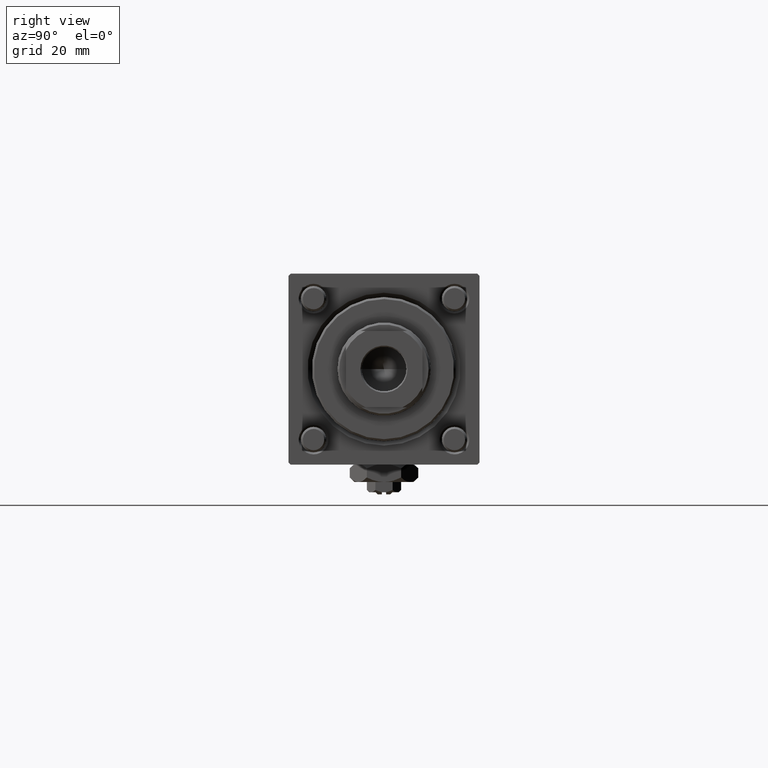
[diagram: clean part render]
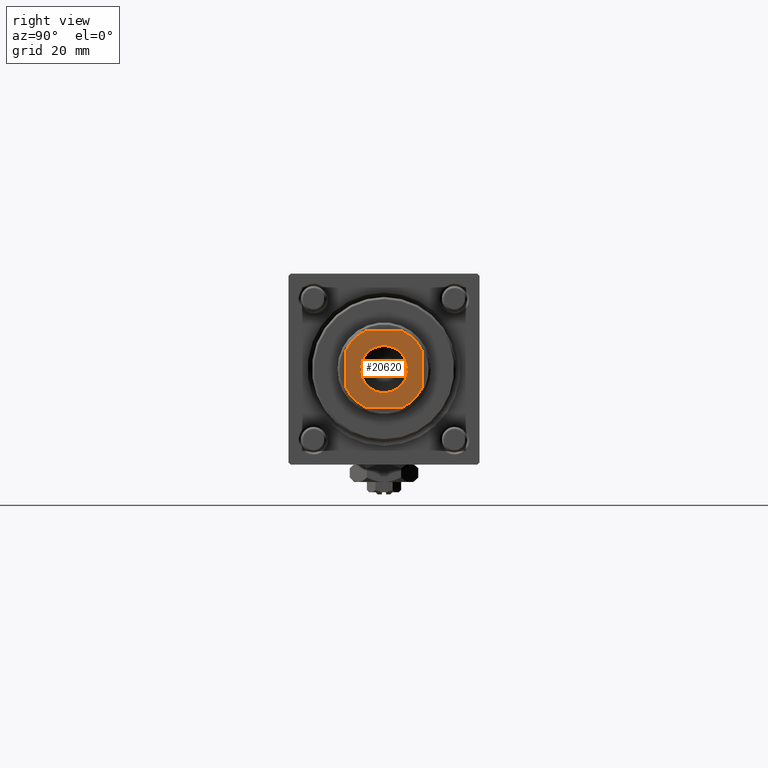
[diagram: same view with one face highlighted and labeled with its STEP entity id]
A machine part, right view. The second image highlights one B-rep face of the part: STEP entity #20620.
In plain terms, the highlighted planar face has unit normal (1, 0, 0).
Its self-contained STEP definition (entity closure, byte-faithful):
#373 = ORIENTED_EDGE ( 'NONE', *, *, #23490, .T. ) ;
#693 = CARTESIAN_POINT ( 'NONE',  ( 8.999999999999996447, 8.999999999999998224, 123.0000000000000000 ) ) ;
#1436 = CARTESIAN_POINT ( 'NONE',  ( 4.358898943540597593, 8.999999999999998224, 123.0000000000000000 ) ) ;
#1494 = ORIENTED_EDGE ( 'NONE', *, *, #36957, .T. ) ;
#1836 = LINE ( 'NONE', #20181, #3960 ) ;
#2848 = ORIENTED_EDGE ( 'NONE', *, *, #23526, .T. ) ;
#3960 = VECTOR ( 'NONE', #56297, 1000.000000000000000 ) ;
#4156 = CIRCLE ( 'NONE', #11730, 5.550000000000013145 ) ;
#6124 = EDGE_CURVE ( 'NONE', #20666, #36016, #1836, .T. ) ;
#6717 = CARTESIAN_POINT ( 'NONE',  ( 8.999999999999998224, 4.358898943540600257, 123.0000000000000000 ) ) ;
#6874 = CARTESIAN_POINT ( 'NONE',  ( 4.358898943540667759, -9.000000000000001776, 123.0000000000000000 ) ) ;
#7294 = DIRECTION ( 'NONE',  ( -0.000000000000000000, 0.000000000000000000, 1.000000000000000000 ) ) ;
#8999 = DIRECTION ( 'NONE',  ( -0.000000000000000000, 0.000000000000000000, 1.000000000000000000 ) ) ;
#10933 = EDGE_CURVE ( 'NONE', #28220, #20797, #42606, .T. ) ;
#11419 = EDGE_LOOP ( 'NONE', ( #53287, #54380, #373, #1494, #26967, #51814, #36761, #54219 ) ) ;
#11730 = AXIS2_PLACEMENT_3D ( 'NONE', #53617, #13060, #42785 ) ;
#12093 = CIRCLE ( 'NONE', #18748, 9.999999999999998224 ) ;
#12651 = EDGE_CURVE ( 'NONE', #25929, #25491, #57084, .T. ) ;
#12850 = DIRECTION ( 'NONE',  ( -1.927470528863119049E-16, 1.000000000000000000, -0.000000000000000000 ) ) ;
#13060 = DIRECTION ( 'NONE',  ( 0.000000000000000000, -0.000000000000000000, -1.000000000000000000 ) ) ;
#13853 = FACE_OUTER_BOUND ( 'NONE', #11419, .T. ) ;
#14152 = CARTESIAN_POINT ( 'NONE',  ( 0.000000000000000000, 0.000000000000000000, 123.0000000000000000 ) ) ;
#14355 = DIRECTION ( 'NONE',  ( -0.000000000000000000, 0.000000000000000000, 1.000000000000000000 ) ) ;
#14469 = VECTOR ( 'NONE', #12850, 1000.000000000000000 ) ;
#14783 = CARTESIAN_POINT ( 'NONE',  ( -9.000000000000003553, 8.999999999999998224, 123.0000000000000000 ) ) ;
#18748 = AXIS2_PLACEMENT_3D ( 'NONE', #27375, #8999, #49862 ) ;
#20181 = CARTESIAN_POINT ( 'NONE',  ( -9.000000000000001776, -9.000000000000001776, 123.0000000000000000 ) ) ;
#20343 = CARTESIAN_POINT ( 'NONE',  ( -5.550000000000013145, 6.796789735267826558E-16, 123.0000000000000000 ) ) ;
#20620 = ADVANCED_FACE ( 'NONE', ( #23338, #13853 ), #58557, .T. ) ;
#20666 = VERTEX_POINT ( 'NONE', #55888 ) ;
#20797 = VERTEX_POINT ( 'NONE', #54646 ) ;
#21087 = EDGE_CURVE ( 'NONE', #48092, #45652, #41249, .T. ) ;
#22684 = DIRECTION ( 'NONE',  ( -0.000000000000000000, 0.000000000000000000, 1.000000000000000000 ) ) ;
#23299 = EDGE_CURVE ( 'NONE', #45652, #53907, #33511, .T. ) ;
#23338 = FACE_BOUND ( 'NONE', #57791, .T. ) ;
#23490 = EDGE_CURVE ( 'NONE', #53907, #41492, #26112, .T. ) ;
#23526 = EDGE_CURVE ( 'NONE', #25491, #25929, #4156, .T. ) ;
#24938 = VECTOR ( 'NONE', #55341, 1000.000000000000000 ) ;
#25369 = DIRECTION ( 'NONE',  ( 1.000000000000000000, 0.000000000000000000, 0.000000000000000000 ) ) ;
#25491 = VERTEX_POINT ( 'NONE', #25829 ) ;
#25829 = CARTESIAN_POINT ( 'NONE',  ( 5.550000000000013145, 0.000000000000000000, 123.0000000000000000 ) ) ;
#25929 = VERTEX_POINT ( 'NONE', #20343 ) ;
#26112 = LINE ( 'NONE', #44159, #29700 ) ;
#26686 = CARTESIAN_POINT ( 'NONE',  ( -9.000000000000003553, 4.358898943540662430, 123.0000000000000000 ) ) ;
#26967 = ORIENTED_EDGE ( 'NONE', *, *, #10933, .T. ) ;
#27375 = CARTESIAN_POINT ( 'NONE',  ( 0.000000000000000000, 0.000000000000000000, 123.0000000000000000 ) ) ;
#28090 = CIRCLE ( 'NONE', #42287, 9.999999999999996447 ) ;
#28220 = VERTEX_POINT ( 'NONE', #26686 ) ;
#28282 = DIRECTION ( 'NONE',  ( 1.000000000000000000, 0.000000000000000000, 0.000000000000000000 ) ) ;
#29700 = VECTOR ( 'NONE', #39741, 1000.000000000000000 ) ;
#29925 = ORIENTED_EDGE ( 'NONE', *, *, #12651, .T. ) ;
#30624 = CARTESIAN_POINT ( 'NONE',  ( 8.999999999999998224, -4.358898943540672200, 123.0000000000000000 ) ) ;
#31875 = DIRECTION ( 'NONE',  ( 1.000000000000000000, 0.000000000000000000, 0.000000000000000000 ) ) ;
#32071 = CARTESIAN_POINT ( 'NONE',  ( -4.358898943540671311, 8.999999999999998224, 123.0000000000000000 ) ) ;
#32098 = AXIS2_PLACEMENT_3D ( 'NONE', #41601, #14355, #33321 ) ;
#33321 = DIRECTION ( 'NONE',  ( 1.000000000000000000, 0.000000000000000000, 0.000000000000000000 ) ) ;
#33436 = AXIS2_PLACEMENT_3D ( 'NONE', #14152, #54120, #50573 ) ;
#33511 = CIRCLE ( 'NONE', #47658, 9.999999999999966249 ) ;
#36016 = VERTEX_POINT ( 'NONE', #6874 ) ;
#36581 = CARTESIAN_POINT ( 'NONE',  ( 0.000000000000000000, 0.000000000000000000, 123.0000000000000000 ) ) ;
#36761 = ORIENTED_EDGE ( 'NONE', *, *, #6124, .T. ) ;
#36957 = EDGE_CURVE ( 'NONE', #41492, #28220, #28090, .T. ) ;
#39275 = EDGE_CURVE ( 'NONE', #20797, #20666, #12093, .T. ) ;
#39741 = DIRECTION ( 'NONE',  ( -1.000000000000000000, -0.000000000000000000, -0.000000000000000000 ) ) ;
#41249 = LINE ( 'NONE', #693, #14469 ) ;
#41492 = VERTEX_POINT ( 'NONE', #32071 ) ;
#41601 = CARTESIAN_POINT ( 'NONE',  ( 0.000000000000000000, 0.000000000000000000, 123.0000000000000000 ) ) ;
#42287 = AXIS2_PLACEMENT_3D ( 'NONE', #47865, #7294, #25369 ) ;
#42606 = LINE ( 'NONE', #14783, #24938 ) ;
#42785 = DIRECTION ( 'NONE',  ( 1.000000000000000000, 0.000000000000000000, 0.000000000000000000 ) ) ;
#44159 = CARTESIAN_POINT ( 'NONE',  ( -9.000000000000003553, 8.999999999999998224, 123.0000000000000000 ) ) ;
#45178 = CARTESIAN_POINT ( 'NONE',  ( 0.000000000000000000, 0.000000000000000000, 123.0000000000000000 ) ) ;
#45652 = VERTEX_POINT ( 'NONE', #6717 ) ;
#47658 = AXIS2_PLACEMENT_3D ( 'NONE', #45178, #22684, #31875 ) ;
#47865 = CARTESIAN_POINT ( 'NONE',  ( 0.000000000000000000, 0.000000000000000000, 123.0000000000000000 ) ) ;
#47891 = EDGE_CURVE ( 'NONE', #36016, #48092, #57617, .T. ) ;
#48092 = VERTEX_POINT ( 'NONE', #30624 ) ;
#49523 = AXIS2_PLACEMENT_3D ( 'NONE', #36581, #54615, #28282 ) ;
#49862 = DIRECTION ( 'NONE',  ( 1.000000000000000000, 0.000000000000000000, 0.000000000000000000 ) ) ;
#50573 = DIRECTION ( 'NONE',  ( 1.000000000000000000, 0.000000000000000000, 0.000000000000000000 ) ) ;
#51814 = ORIENTED_EDGE ( 'NONE', *, *, #39275, .T. ) ;
#53287 = ORIENTED_EDGE ( 'NONE', *, *, #21087, .T. ) ;
#53617 = CARTESIAN_POINT ( 'NONE',  ( 0.000000000000000000, 0.000000000000000000, 123.0000000000000000 ) ) ;
#53907 = VERTEX_POINT ( 'NONE', #1436 ) ;
#54120 = DIRECTION ( 'NONE',  ( -0.000000000000000000, 0.000000000000000000, 1.000000000000000000 ) ) ;
#54219 = ORIENTED_EDGE ( 'NONE', *, *, #47891, .T. ) ;
#54380 = ORIENTED_EDGE ( 'NONE', *, *, #23299, .T. ) ;
#54615 = DIRECTION ( 'NONE',  ( 0.000000000000000000, -0.000000000000000000, -1.000000000000000000 ) ) ;
#54646 = CARTESIAN_POINT ( 'NONE',  ( -9.000000000000003553, -4.358898943540665094, 123.0000000000000000 ) ) ;
#55341 = DIRECTION ( 'NONE',  ( 9.637352644315595243E-17, -1.000000000000000000, 0.000000000000000000 ) ) ;
#55888 = CARTESIAN_POINT ( 'NONE',  ( -4.358898943540667759, -9.000000000000001776, 123.0000000000000000 ) ) ;
#56297 = DIRECTION ( 'NONE',  ( 1.000000000000000000, 0.000000000000000000, 0.000000000000000000 ) ) ;
#57084 = CIRCLE ( 'NONE', #49523, 5.550000000000013145 ) ;
#57617 = CIRCLE ( 'NONE', #32098, 9.999999999999998224 ) ;
#57791 = EDGE_LOOP ( 'NONE', ( #2848, #29925 ) ) ;
#58557 = PLANE ( 'NONE',  #33436 ) ;